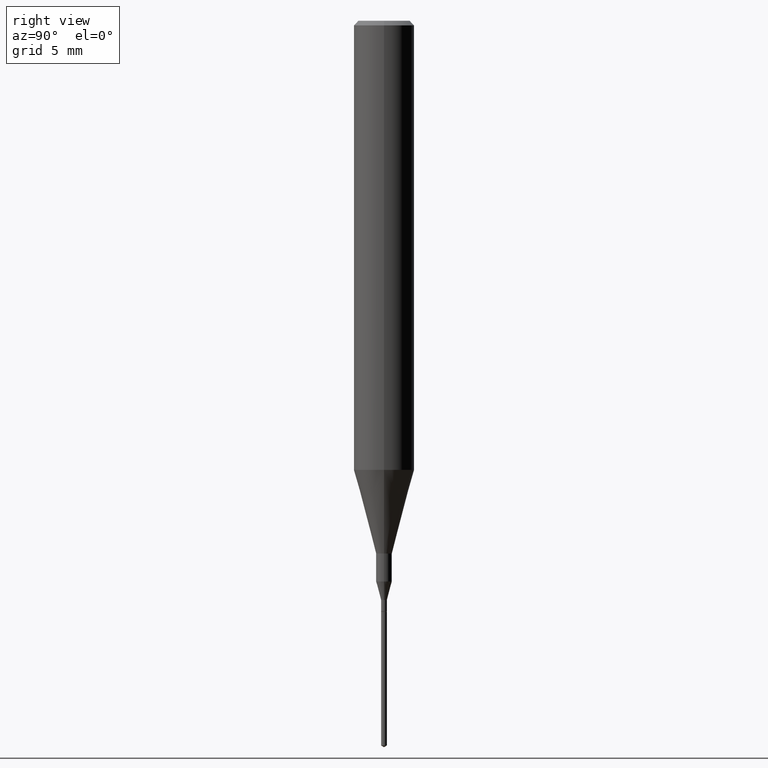
[diagram: clean part render]
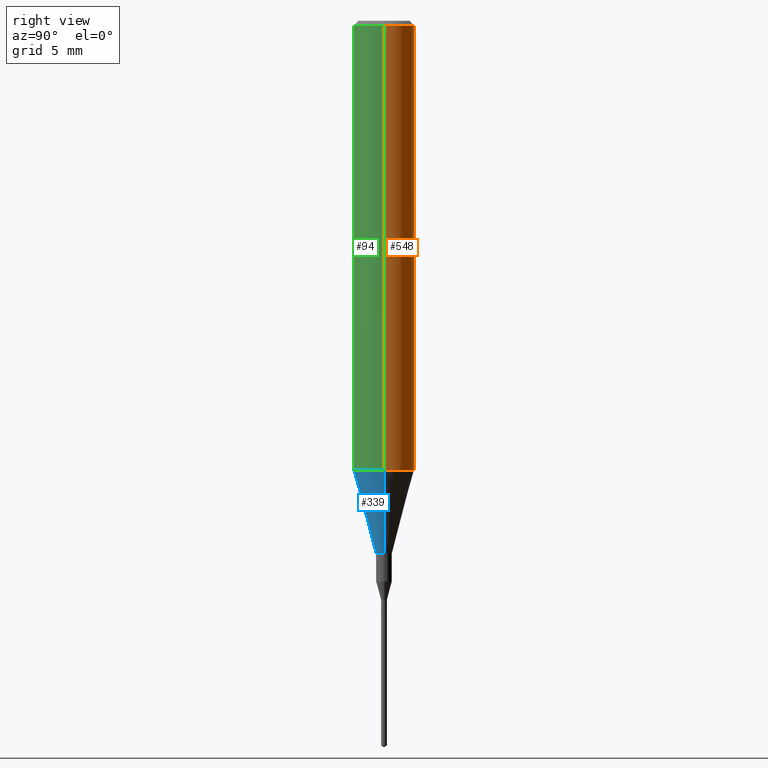
[diagram: same view with three faces highlighted in distinct colors, each labeled with its STEP entity id]
A machine part, right view with three faces highlighted in distinct colors.
Their STEP definitions:

[orange] entity #548 — the highlighted cylindrical surface (edge-blend (fillet) strip) has radius 1.5875 mm, axis along (-0, 0, 1).
#21 = VERTEX_POINT ( 'NONE', #412 ) ;
#22 = DIRECTION ( 'NONE',  ( -2.445468806185136877E-29, 3.491481338843145188E-15, 1.000000000000000000 ) ) ;
#33 = EDGE_CURVE ( 'NONE', #262, #488, #92, .T. ) ;
#39 = CIRCLE ( 'NONE', #418, 0.06250000000000011102 ) ;
#50 = DIRECTION ( 'NONE',  ( -2.445468806185136597E-29, 3.491481338843145583E-15, 1.000000000000000000 ) ) ;
#92 = LINE ( 'NONE', #372, #162 ) ;
#107 = DIRECTION ( 'NONE',  ( -2.445468806185136597E-29, 3.491481338843145583E-15, 1.000000000000000000 ) ) ;
#130 = CARTESIAN_POINT ( 'NONE',  ( 2.292627005798580623E-31, -3.273263755165470801E-17, -0.009375000000000062103 ) ) ;
#154 = VECTOR ( 'NONE', #22, 39.37007874015748143 ) ;
#160 = CARTESIAN_POINT ( 'NONE',  ( 0.000000000000000000, 0.000000000000000000, 0.000000000000000000 ) ) ;
#162 = VECTOR ( 'NONE', #185, 39.37007874015748143 ) ;
#163 = FACE_OUTER_BOUND ( 'NONE', #532, .T. ) ;
#165 = CARTESIAN_POINT ( 'NONE',  ( 0.06250000000000000000, -4.691678049070463404E-16, -0.009375000000000062103 ) ) ;
#171 = ORIENTED_EDGE ( 'NONE', *, *, #225, .F. ) ;
#172 = ORIENTED_EDGE ( 'NONE', *, *, #392, .T. ) ;
#185 = DIRECTION ( 'NONE',  ( -2.445468806185136877E-29, 3.491481338843145188E-15, 1.000000000000000000 ) ) ;
#205 = CARTESIAN_POINT ( 'NONE',  ( -0.06250000000000000000, -1.191264174815165938E-15, -0.009375000000000062103 ) ) ;
#223 = ORIENTED_EDGE ( 'NONE', *, *, #336, .T. ) ;
#224 = CARTESIAN_POINT ( 'NONE',  ( 0.06250000000000011102, -3.674409299134196572E-15, -0.9273926501499395458 ) ) ;
#225 = EDGE_CURVE ( 'NONE', #488, #589, #466, .T. ) ;
#240 = LINE ( 'NONE', #464, #154 ) ;
#254 = DIRECTION ( 'NONE',  ( 1.000000000000000000, -6.982962677686266711E-15, 4.876176775795935232E-29 ) ) ;
#262 = VERTEX_POINT ( 'NONE', #224 ) ;
#290 = AXIS2_PLACEMENT_3D ( 'NONE', #160, #524, #254 ) ;
#296 = CARTESIAN_POINT ( 'NONE',  ( 2.267909797027042920E-29, -3.237974131778804114E-15, -0.9273926501499395458 ) ) ;
#336 = EDGE_CURVE ( 'NONE', #262, #21, #39, .T. ) ;
#372 = CARTESIAN_POINT ( 'NONE',  ( 0.06250000000000005551, -4.364351673553920638E-16, 3.047610484872462323E-30 ) ) ;
#392 = EDGE_CURVE ( 'NONE', #21, #589, #240, .T. ) ;
#402 = ORIENTED_EDGE ( 'NONE', *, *, #33, .F. ) ;
#412 = CARTESIAN_POINT ( 'NONE',  ( -0.06250000000000011102, -2.793884921928740709E-15, -0.9273926501499395458 ) ) ;
#418 = AXIS2_PLACEMENT_3D ( 'NONE', #296, #107, #575 ) ;
#464 = CARTESIAN_POINT ( 'NONE',  ( -0.06250000000000005551, 4.440892098500630106E-16, -3.074334431409318916E-30 ) ) ;
#466 = CIRCLE ( 'NONE', #489, 0.06250000000000000000 ) ;
#488 = VERTEX_POINT ( 'NONE', #165 ) ;
#489 = AXIS2_PLACEMENT_3D ( 'NONE', #130, #50, #545 ) ;
#524 = DIRECTION ( 'NONE',  ( -2.445468806185136597E-29, 3.491481338843145583E-15, 1.000000000000000000 ) ) ;
#532 = EDGE_LOOP ( 'NONE', ( #223, #172, #171, #402 ) ) ;
#545 = DIRECTION ( 'NONE',  ( 1.000000000000000000, -6.982962677686266711E-15, 0.000000000000000000 ) ) ;
#548 = ADVANCED_FACE ( 'NONE', ( #163 ), #579, .T. ) ;
#575 = DIRECTION ( 'NONE',  ( 1.000000000000000000, -6.982962677686265922E-15, 0.000000000000000000 ) ) ;
#579 = CYLINDRICAL_SURFACE ( 'NONE', #290, 0.06250000000000005551 ) ;
#589 = VERTEX_POINT ( 'NONE', #205 ) ;

[blue] entity #339 — the highlighted conical surface has half-angle 15 deg.
#9 = AXIS2_PLACEMENT_3D ( 'NONE', #55, #236, #367 ) ;
#21 = VERTEX_POINT ( 'NONE', #412 ) ;
#29 = VECTOR ( 'NONE', #228, 39.37007874015748143 ) ;
#46 = DIRECTION ( 'NONE',  ( -2.445468806185136597E-29, 3.491481338843145583E-15, 1.000000000000000000 ) ) ;
#51 = CARTESIAN_POINT ( 'NONE',  ( -0.06250000000000011102, -2.793884921928740709E-15, -0.9273926501499395458 ) ) ;
#55 = CARTESIAN_POINT ( 'NONE',  ( 2.690015686803650369E-29, -3.840629472727460101E-15, -1.100000000000000089 ) ) ;
#85 = ORIENTED_EDGE ( 'NONE', *, *, #148, .T. ) ;
#90 = CARTESIAN_POINT ( 'NONE',  ( 0.06250000000000011102, -3.674409299134196572E-15, -0.9273926501499395458 ) ) ;
#97 = CARTESIAN_POINT ( 'NONE',  ( 2.267909797027042920E-29, -3.237974131778804114E-15, -0.9273926501499395458 ) ) ;
#108 = FACE_OUTER_BOUND ( 'NONE', #261, .T. ) ;
#123 = EDGE_CURVE ( 'NONE', #222, #21, #276, .T. ) ;
#135 = CARTESIAN_POINT ( 'NONE',  ( 0.01624999999999999709, -3.954102616239861778E-15, -1.100000000000000089 ) ) ;
#141 = CIRCLE ( 'NONE', #180, 0.06250000000000011102 ) ;
#148 = EDGE_CURVE ( 'NONE', #222, #192, #158, .T. ) ;
#158 = CIRCLE ( 'NONE', #9, 0.01624999999999999709 ) ;
#180 = AXIS2_PLACEMENT_3D ( 'NONE', #97, #46, #405 ) ;
#192 = VERTEX_POINT ( 'NONE', #135 ) ;
#222 = VERTEX_POINT ( 'NONE', #557 ) ;
#224 = CARTESIAN_POINT ( 'NONE',  ( 0.06250000000000011102, -3.674409299134196572E-15, -0.9273926501499395458 ) ) ;
#228 = DIRECTION ( 'NONE',  ( -0.2588190451025214611, 5.211531920934550253E-15, 0.9659258262890679791 ) ) ;
#230 = AXIS2_PLACEMENT_3D ( 'NONE', #287, #376, #424 ) ;
#236 = DIRECTION ( 'NONE',  ( -2.445468806185136597E-29, 3.491481338843145583E-15, 1.000000000000000000 ) ) ;
#259 = CONICAL_SURFACE ( 'NONE', #230, 0.06250000000000011102, 0.2617993877991501850 ) ;
#261 = EDGE_LOOP ( 'NONE', ( #308, #85, #435, #305 ) ) ;
#262 = VERTEX_POINT ( 'NONE', #224 ) ;
#272 = DIRECTION ( 'NONE',  ( 0.2588190451025214611, 1.565188264969620982E-15, 0.9659258262890679791 ) ) ;
#276 = LINE ( 'NONE', #51, #29 ) ;
#287 = CARTESIAN_POINT ( 'NONE',  ( 2.267909797027042920E-29, -3.237974131778804114E-15, -0.9273926501499395458 ) ) ;
#289 = EDGE_CURVE ( 'NONE', #192, #262, #503, .T. ) ;
#302 = EDGE_CURVE ( 'NONE', #21, #262, #141, .T. ) ;
#305 = ORIENTED_EDGE ( 'NONE', *, *, #302, .F. ) ;
#308 = ORIENTED_EDGE ( 'NONE', *, *, #123, .F. ) ;
#339 = ADVANCED_FACE ( 'NONE', ( #108 ), #259, .T. ) ;
#367 = DIRECTION ( 'NONE',  ( 1.000000000000000000, -6.982962677686259611E-15, 0.000000000000000000 ) ) ;
#376 = DIRECTION ( 'NONE',  ( -2.445468806185136597E-29, 3.491481338843145583E-15, 1.000000000000000000 ) ) ;
#405 = DIRECTION ( 'NONE',  ( 1.000000000000000000, -6.982962677686265922E-15, 0.000000000000000000 ) ) ;
#412 = CARTESIAN_POINT ( 'NONE',  ( -0.06250000000000011102, -2.793884921928740709E-15, -0.9273926501499395458 ) ) ;
#424 = DIRECTION ( 'NONE',  ( 1.000000000000000000, -6.982962677686265922E-15, 0.000000000000000000 ) ) ;
#435 = ORIENTED_EDGE ( 'NONE', *, *, #289, .T. ) ;
#503 = LINE ( 'NONE', #90, #561 ) ;
#557 = CARTESIAN_POINT ( 'NONE',  ( -0.01624999999999999709, -3.825976655460928775E-15, -1.100000000000000089 ) ) ;
#561 = VECTOR ( 'NONE', #272, 39.37007874015748143 ) ;

[green] entity #94 — the highlighted cylindrical surface (edge-blend (fillet) strip) has radius 1.5875 mm, axis along (-0, 0, 1).
#21 = VERTEX_POINT ( 'NONE', #412 ) ;
#22 = DIRECTION ( 'NONE',  ( -2.445468806185136877E-29, 3.491481338843145188E-15, 1.000000000000000000 ) ) ;
#33 = EDGE_CURVE ( 'NONE', #262, #488, #92, .T. ) ;
#46 = DIRECTION ( 'NONE',  ( -2.445468806185136597E-29, 3.491481338843145583E-15, 1.000000000000000000 ) ) ;
#68 = EDGE_CURVE ( 'NONE', #589, #488, #400, .T. ) ;
#92 = LINE ( 'NONE', #372, #162 ) ;
#94 = ADVANCED_FACE ( 'NONE', ( #364 ), #137, .T. ) ;
#97 = CARTESIAN_POINT ( 'NONE',  ( 2.267909797027042920E-29, -3.237974131778804114E-15, -0.9273926501499395458 ) ) ;
#100 = CARTESIAN_POINT ( 'NONE',  ( 0.000000000000000000, 0.000000000000000000, 0.000000000000000000 ) ) ;
#132 = DIRECTION ( 'NONE',  ( -2.445468806185136597E-29, 3.491481338843145583E-15, 1.000000000000000000 ) ) ;
#137 = CYLINDRICAL_SURFACE ( 'NONE', #284, 0.06250000000000005551 ) ;
#140 = DIRECTION ( 'NONE',  ( -2.445468806185136597E-29, 3.491481338843145583E-15, 1.000000000000000000 ) ) ;
#141 = CIRCLE ( 'NONE', #180, 0.06250000000000011102 ) ;
#154 = VECTOR ( 'NONE', #22, 39.37007874015748143 ) ;
#162 = VECTOR ( 'NONE', #185, 39.37007874015748143 ) ;
#165 = CARTESIAN_POINT ( 'NONE',  ( 0.06250000000000000000, -4.691678049070463404E-16, -0.009375000000000062103 ) ) ;
#175 = ORIENTED_EDGE ( 'NONE', *, *, #33, .T. ) ;
#180 = AXIS2_PLACEMENT_3D ( 'NONE', #97, #46, #405 ) ;
#185 = DIRECTION ( 'NONE',  ( -2.445468806185136877E-29, 3.491481338843145188E-15, 1.000000000000000000 ) ) ;
#200 = AXIS2_PLACEMENT_3D ( 'NONE', #407, #140, #330 ) ;
#201 = ORIENTED_EDGE ( 'NONE', *, *, #302, .T. ) ;
#205 = CARTESIAN_POINT ( 'NONE',  ( -0.06250000000000000000, -1.191264174815165938E-15, -0.009375000000000062103 ) ) ;
#224 = CARTESIAN_POINT ( 'NONE',  ( 0.06250000000000011102, -3.674409299134196572E-15, -0.9273926501499395458 ) ) ;
#240 = LINE ( 'NONE', #464, #154 ) ;
#262 = VERTEX_POINT ( 'NONE', #224 ) ;
#267 = ORIENTED_EDGE ( 'NONE', *, *, #68, .F. ) ;
#270 = DIRECTION ( 'NONE',  ( 1.000000000000000000, -6.982962677686266711E-15, 4.876176775795935232E-29 ) ) ;
#284 = AXIS2_PLACEMENT_3D ( 'NONE', #100, #132, #270 ) ;
#302 = EDGE_CURVE ( 'NONE', #21, #262, #141, .T. ) ;
#330 = DIRECTION ( 'NONE',  ( 1.000000000000000000, -6.982962677686266711E-15, 0.000000000000000000 ) ) ;
#364 = FACE_OUTER_BOUND ( 'NONE', #568, .T. ) ;
#372 = CARTESIAN_POINT ( 'NONE',  ( 0.06250000000000005551, -4.364351673553920638E-16, 3.047610484872462323E-30 ) ) ;
#392 = EDGE_CURVE ( 'NONE', #21, #589, #240, .T. ) ;
#398 = ORIENTED_EDGE ( 'NONE', *, *, #392, .F. ) ;
#400 = CIRCLE ( 'NONE', #200, 0.06250000000000000000 ) ;
#405 = DIRECTION ( 'NONE',  ( 1.000000000000000000, -6.982962677686265922E-15, 0.000000000000000000 ) ) ;
#407 = CARTESIAN_POINT ( 'NONE',  ( 2.292627005798580623E-31, -3.273263755165470801E-17, -0.009375000000000062103 ) ) ;
#412 = CARTESIAN_POINT ( 'NONE',  ( -0.06250000000000011102, -2.793884921928740709E-15, -0.9273926501499395458 ) ) ;
#464 = CARTESIAN_POINT ( 'NONE',  ( -0.06250000000000005551, 4.440892098500630106E-16, -3.074334431409318916E-30 ) ) ;
#488 = VERTEX_POINT ( 'NONE', #165 ) ;
#568 = EDGE_LOOP ( 'NONE', ( #398, #201, #175, #267 ) ) ;
#589 = VERTEX_POINT ( 'NONE', #205 ) ;